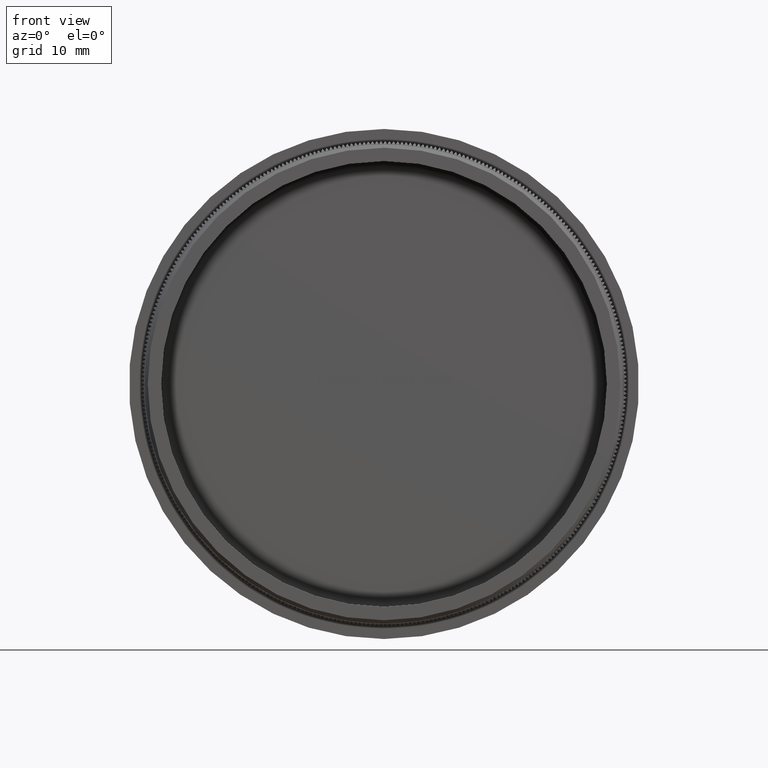
[diagram: clean part render]
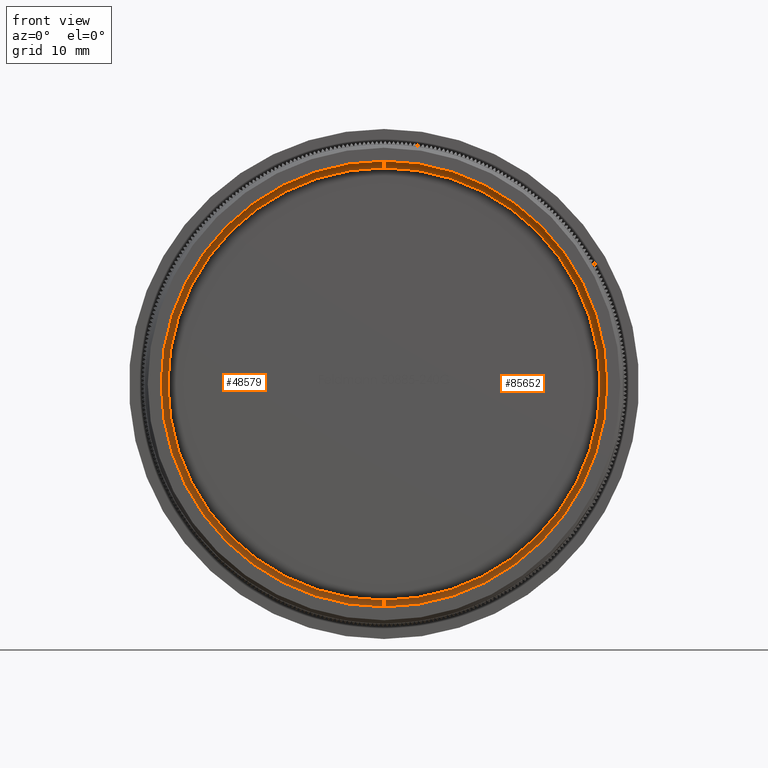
[diagram: same view with one multi-face feature highlighted, each face labeled with its STEP entity id]
A machine part, front view. The highlighted faces form ONE feature: a constant-radius fillet chain: 2 tangent blend faces with common blend radius 1 mm. The faces share edges in the B-rep.
Their STEP definitions:
[1] entity #85652 (Torus):
#2361 = CARTESIAN_POINT ( 'NONE',  ( 0.0000000000000000000, 15.00000000000000000, 0.0000000000000000000 ) ) ;
#4683 = ORIENTED_EDGE ( 'NONE', *, *, #25380, .T. ) ;
#5576 = AXIS2_PLACEMENT_3D ( 'NONE', #2361, #30766, #57208 ) ;
#6422 = EDGE_CURVE ( 'NONE', #58686, #62561, #39644, .T. ) ;
#6469 = DIRECTION ( 'NONE',  ( 0.0000000000000000000, 0.0000000000000000000, 1.000000000000000000 ) ) ;
#10563 = VERTEX_POINT ( 'NONE', #87163 ) ;
#11906 = CARTESIAN_POINT ( 'NONE',  ( 4.071950607164949200E-015, 13.99999999999999800, -33.24999999999999300 ) ) ;
#12252 = AXIS2_PLACEMENT_3D ( 'NONE', #75256, #41157, #6469 ) ;
#22056 = CIRCLE ( 'NONE', #12252, 1.000000000000000900 ) ;
#25380 = EDGE_CURVE ( 'NONE', #85469, #10563, #22056, .T. ) ;
#29851 = DIRECTION ( 'NONE',  ( 0.0000000000000000000, 0.0000000000000000000, 1.000000000000000000 ) ) ;
#30158 = EDGE_CURVE ( 'NONE', #10563, #62561, #76436, .T. ) ;
#30766 = DIRECTION ( 'NONE',  ( -0.0000000000000000000, 1.000000000000000000, -0.0000000000000000000 ) ) ;
#34192 = DIRECTION ( 'NONE',  ( -0.0000000000000000000, 1.000000000000000000, -0.0000000000000000000 ) ) ;
#34726 = TOROIDAL_SURFACE ( 'NONE', #54405, 32.24999999999999300, 1.000000000000000900 ) ;
#39644 = CIRCLE ( 'NONE', #53231, 1.000000000000000900 ) ;
#41157 = DIRECTION ( 'NONE',  ( -1.000000000000000000, 0.0000000000000000000, 0.0000000000000000000 ) ) ;
#44552 = ORIENTED_EDGE ( 'NONE', *, *, #30158, .T. ) ;
#50601 = DIRECTION ( 'NONE',  ( -0.0000000000000000000, 1.000000000000000000, -0.0000000000000000000 ) ) ;
#53231 = AXIS2_PLACEMENT_3D ( 'NONE', #60011, #66976, #87868 ) ;
#53984 = ORIENTED_EDGE ( 'NONE', *, *, #6422, .F. ) ;
#54066 = CARTESIAN_POINT ( 'NONE',  ( 0.0000000000000000000, 13.99999999999999800, 0.0000000000000000000 ) ) ;
#54405 = AXIS2_PLACEMENT_3D ( 'NONE', #54066, #34192, #68241 ) ;
#55580 = EDGE_CURVE ( 'NONE', #85469, #58686, #68120, .T. ) ;
#57208 = DIRECTION ( 'NONE',  ( 0.0000000000000000000, 0.0000000000000000000, 1.000000000000000000 ) ) ;
#58686 = VERTEX_POINT ( 'NONE', #11906 ) ;
#60011 = CARTESIAN_POINT ( 'NONE',  ( 3.949485927250213300E-015, 13.99999999999999800, -32.24999999999999300 ) ) ;
#62561 = VERTEX_POINT ( 'NONE', #80834 ) ;
#65257 = CARTESIAN_POINT ( 'NONE',  ( 0.0000000000000000000, 13.99999999999999800, 33.24999999999999300 ) ) ;
#65882 = EDGE_LOOP ( 'NONE', ( #53984, #73088, #4683, #44552 ) ) ;
#66976 = DIRECTION ( 'NONE',  ( 1.000000000000000000, 0.0000000000000000000, 1.224646799147353200E-016 ) ) ;
#68120 = CIRCLE ( 'NONE', #87086, 33.24999999999999300 ) ;
#68241 = DIRECTION ( 'NONE',  ( 0.0000000000000000000, 0.0000000000000000000, 1.000000000000000000 ) ) ;
#73088 = ORIENTED_EDGE ( 'NONE', *, *, #55580, .F. ) ;
#75256 = CARTESIAN_POINT ( 'NONE',  ( 0.0000000000000000000, 13.99999999999999800, 32.24999999999999300 ) ) ;
#76436 = CIRCLE ( 'NONE', #5576, 32.24999999999999300 ) ;
#78386 = CARTESIAN_POINT ( 'NONE',  ( 0.0000000000000000000, 13.99999999999999800, 0.0000000000000000000 ) ) ;
#80834 = CARTESIAN_POINT ( 'NONE',  ( 4.010718267207580800E-015, 15.00000000000000000, -32.24999999999999300 ) ) ;
#85469 = VERTEX_POINT ( 'NONE', #65257 ) ;
#85652 = ADVANCED_FACE ( 'NONE', ( #87654 ), #34726, .F. ) ;
#87086 = AXIS2_PLACEMENT_3D ( 'NONE', #78386, #50601, #29851 ) ;
#87163 = CARTESIAN_POINT ( 'NONE',  ( 0.0000000000000000000, 15.00000000000000000, 32.24999999999999300 ) ) ;
#87654 = FACE_OUTER_BOUND ( 'NONE', #65882, .T. ) ;
#87868 = DIRECTION ( 'NONE',  ( 1.224646799147349500E-016, 0.0000000000000000000, -1.000000000000000000 ) ) ;
[2] entity #48579 (Torus):
#4233 = ORIENTED_EDGE ( 'NONE', *, *, #25380, .F. ) ;
#4504 = CARTESIAN_POINT ( 'NONE',  ( 0.0000000000000000000, 15.00000000000000000, 0.0000000000000000000 ) ) ;
#6422 = EDGE_CURVE ( 'NONE', #58686, #62561, #39644, .T. ) ;
#6469 = DIRECTION ( 'NONE',  ( 0.0000000000000000000, 0.0000000000000000000, 1.000000000000000000 ) ) ;
#10286 = AXIS2_PLACEMENT_3D ( 'NONE', #34423, #69071, #82708 ) ;
#10563 = VERTEX_POINT ( 'NONE', #87163 ) ;
#11906 = CARTESIAN_POINT ( 'NONE',  ( 4.071950607164949200E-015, 13.99999999999999800, -33.24999999999999300 ) ) ;
#12252 = AXIS2_PLACEMENT_3D ( 'NONE', #75256, #41157, #6469 ) ;
#16756 = AXIS2_PLACEMENT_3D ( 'NONE', #4504, #60222, #17825 ) ;
#17825 = DIRECTION ( 'NONE',  ( 0.0000000000000000000, 0.0000000000000000000, 1.000000000000000000 ) ) ;
#18481 = ORIENTED_EDGE ( 'NONE', *, *, #6422, .T. ) ;
#22056 = CIRCLE ( 'NONE', #12252, 1.000000000000000900 ) ;
#25380 = EDGE_CURVE ( 'NONE', #85469, #10563, #22056, .T. ) ;
#27140 = DIRECTION ( 'NONE',  ( -0.0000000000000000000, 1.000000000000000000, -0.0000000000000000000 ) ) ;
#28041 = CARTESIAN_POINT ( 'NONE',  ( 0.0000000000000000000, 13.99999999999999800, 0.0000000000000000000 ) ) ;
#34423 = CARTESIAN_POINT ( 'NONE',  ( 0.0000000000000000000, 13.99999999999999800, 0.0000000000000000000 ) ) ;
#34926 = TOROIDAL_SURFACE ( 'NONE', #10286, 32.24999999999999300, 1.000000000000000900 ) ;
#39644 = CIRCLE ( 'NONE', #53231, 1.000000000000000900 ) ;
#41157 = DIRECTION ( 'NONE',  ( -1.000000000000000000, 0.0000000000000000000, 0.0000000000000000000 ) ) ;
#43940 = ORIENTED_EDGE ( 'NONE', *, *, #49084, .F. ) ;
#43974 = CIRCLE ( 'NONE', #16756, 32.24999999999999300 ) ;
#44507 = CIRCLE ( 'NONE', #58162, 33.24999999999999300 ) ;
#48579 = ADVANCED_FACE ( 'NONE', ( #62883 ), #34926, .F. ) ;
#48647 = ORIENTED_EDGE ( 'NONE', *, *, #50960, .T. ) ;
#49084 = EDGE_CURVE ( 'NONE', #58686, #85469, #44507, .T. ) ;
#50960 = EDGE_CURVE ( 'NONE', #62561, #10563, #43974, .T. ) ;
#53231 = AXIS2_PLACEMENT_3D ( 'NONE', #60011, #66976, #87868 ) ;
#55958 = DIRECTION ( 'NONE',  ( 0.0000000000000000000, 0.0000000000000000000, 1.000000000000000000 ) ) ;
#58162 = AXIS2_PLACEMENT_3D ( 'NONE', #28041, #27140, #55958 ) ;
#58686 = VERTEX_POINT ( 'NONE', #11906 ) ;
#60011 = CARTESIAN_POINT ( 'NONE',  ( 3.949485927250213300E-015, 13.99999999999999800, -32.24999999999999300 ) ) ;
#60222 = DIRECTION ( 'NONE',  ( -0.0000000000000000000, 1.000000000000000000, -0.0000000000000000000 ) ) ;
#62561 = VERTEX_POINT ( 'NONE', #80834 ) ;
#62883 = FACE_OUTER_BOUND ( 'NONE', #84480, .T. ) ;
#65257 = CARTESIAN_POINT ( 'NONE',  ( 0.0000000000000000000, 13.99999999999999800, 33.24999999999999300 ) ) ;
#66976 = DIRECTION ( 'NONE',  ( 1.000000000000000000, 0.0000000000000000000, 1.224646799147353200E-016 ) ) ;
#69071 = DIRECTION ( 'NONE',  ( -0.0000000000000000000, 1.000000000000000000, -0.0000000000000000000 ) ) ;
#75256 = CARTESIAN_POINT ( 'NONE',  ( 0.0000000000000000000, 13.99999999999999800, 32.24999999999999300 ) ) ;
#80834 = CARTESIAN_POINT ( 'NONE',  ( 4.010718267207580800E-015, 15.00000000000000000, -32.24999999999999300 ) ) ;
#82708 = DIRECTION ( 'NONE',  ( 0.0000000000000000000, 0.0000000000000000000, 1.000000000000000000 ) ) ;
#84480 = EDGE_LOOP ( 'NONE', ( #43940, #18481, #48647, #4233 ) ) ;
#85469 = VERTEX_POINT ( 'NONE', #65257 ) ;
#87163 = CARTESIAN_POINT ( 'NONE',  ( 0.0000000000000000000, 15.00000000000000000, 32.24999999999999300 ) ) ;
#87868 = DIRECTION ( 'NONE',  ( 1.224646799147349500E-016, 0.0000000000000000000, -1.000000000000000000 ) ) ;